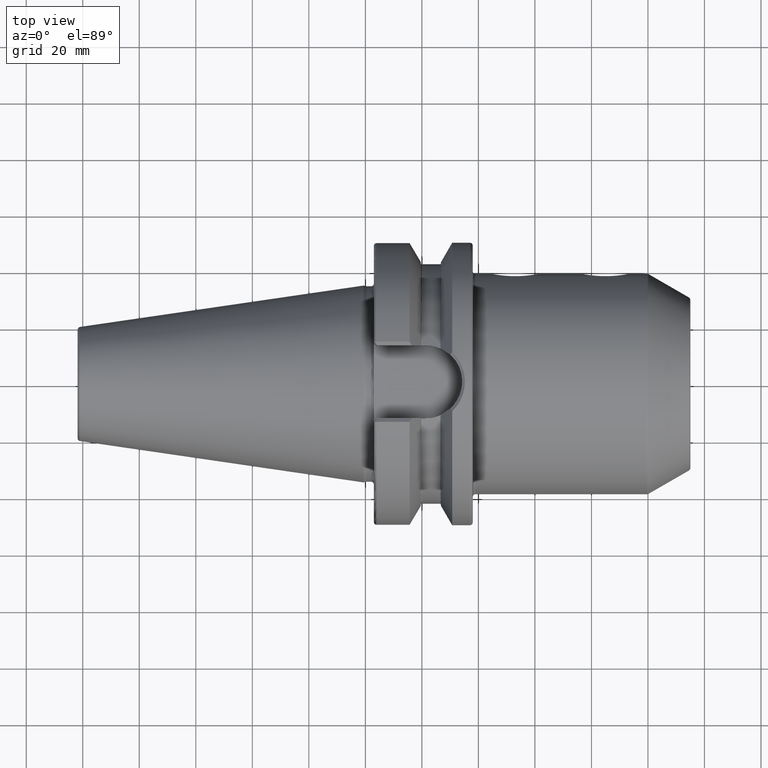
[diagram: clean part render]
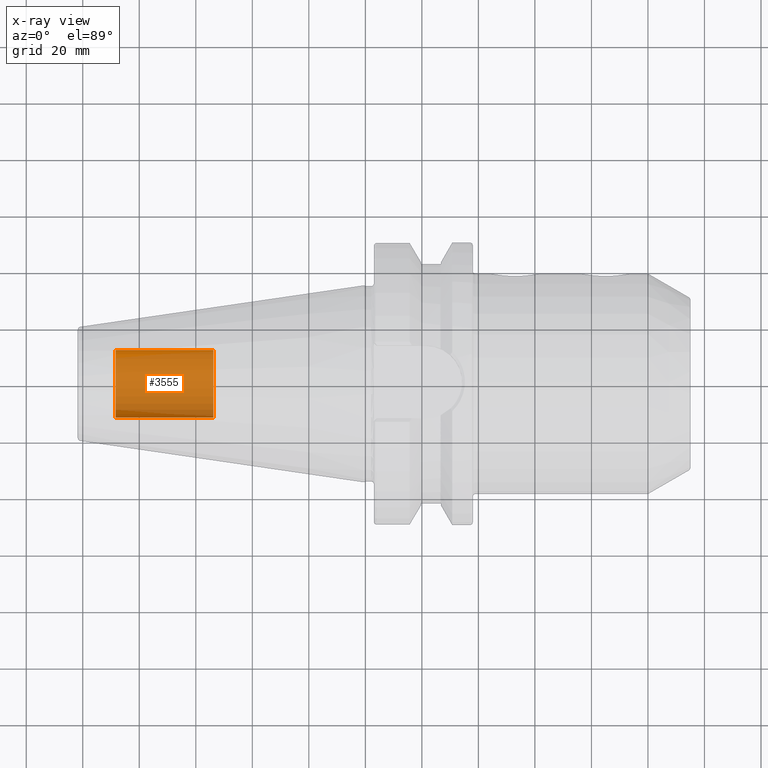
[diagram: x-ray — body ghosted, one internal face saturated and labeled with its STEP entity id]
A machine part, top view, then the same camera in x-ray: the body is ghosted and one INTERNAL B-rep face — a face not visible from any outside direction — is saturated and labeled: STEP entity #3555.
In plain terms, the highlighted cylindrical surface (edge-blend (fillet) strip) has radius 12.0032 mm, axis along (1, 0, 0).
Its self-contained STEP definition (entity closure, byte-faithful):
#3490=CARTESIAN_POINT('',(-8.835E1,0.E0,0.E0));
#3491=DIRECTION('',(-1.E0,0.E0,0.E0));
#3492=DIRECTION('',(0.E0,1.E0,0.E0));
#3493=AXIS2_PLACEMENT_3D('',#3490,#3491,#3492);
#3495=DIRECTION('',(1.E0,0.E0,0.E0));
#3496=VECTOR('',#3495,3.455E1);
#3497=CARTESIAN_POINT('',(-8.835E1,-1.200325E1,0.E0));
#3498=LINE('',#3497,#3496);
#3504=DIRECTION('',(1.E0,0.E0,0.E0));
#3505=VECTOR('',#3504,3.455E1);
#3506=CARTESIAN_POINT('',(-8.835E1,1.200325E1,0.E0));
#3507=LINE('',#3506,#3505);
#3513=CARTESIAN_POINT('',(-5.38E1,0.E0,0.E0));
#3514=DIRECTION('',(1.E0,0.E0,0.E0));
#3515=DIRECTION('',(0.E0,-1.E0,0.E0));
#3516=AXIS2_PLACEMENT_3D('',#3513,#3514,#3515);
#3528=CARTESIAN_POINT('',(-8.835E1,1.200325E1,0.E0));
#3529=CARTESIAN_POINT('',(-8.835E1,-1.200325E1,0.E0));
#3530=VERTEX_POINT('',#3528);
#3531=VERTEX_POINT('',#3529);
#3532=CARTESIAN_POINT('',(-5.38E1,1.200325E1,0.E0));
#3533=CARTESIAN_POINT('',(-5.38E1,-1.200325E1,0.E0));
#3534=VERTEX_POINT('',#3532);
#3535=VERTEX_POINT('',#3533);
#3540=CARTESIAN_POINT('',(-8.835E1,0.E0,0.E0));
#3541=DIRECTION('',(1.E0,0.E0,0.E0));
#3542=DIRECTION('',(0.E0,1.E0,0.E0));
#3543=AXIS2_PLACEMENT_3D('',#3540,#3541,#3542);
#3544=CYLINDRICAL_SURFACE('',#3543,1.200325E1);
#3546=ORIENTED_EDGE('',*,*,#3545,.T.);
#3548=ORIENTED_EDGE('',*,*,#3547,.T.);
#3550=ORIENTED_EDGE('',*,*,#3549,.T.);
#3552=ORIENTED_EDGE('',*,*,#3551,.F.);
#3553=EDGE_LOOP('',(#3546,#3548,#3550,#3552));
#3554=FACE_OUTER_BOUND('',#3553,.F.);
#3555=ADVANCED_FACE('',(#3554),#3544,.T.);
#3494=CIRCLE('',#3493,1.200325E1);
#3517=CIRCLE('',#3516,1.200325E1);
#3545=EDGE_CURVE('',#3530,#3531,#3494,.T.);
#3547=EDGE_CURVE('',#3531,#3535,#3498,.T.);
#3549=EDGE_CURVE('',#3535,#3534,#3517,.T.);
#3551=EDGE_CURVE('',#3530,#3534,#3507,.T.);